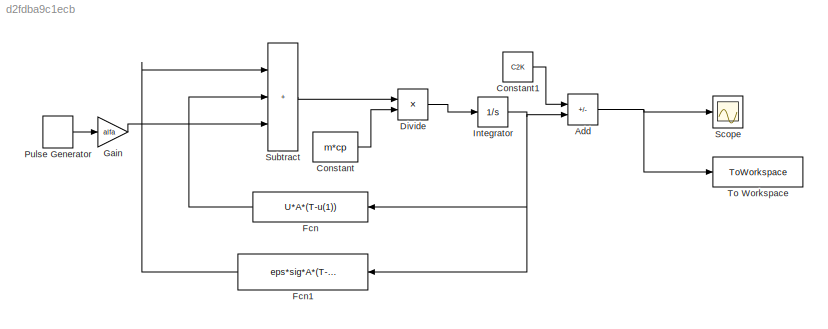
MODEL slx_d2fdba9c1ecb
KIND model
CONFIG AbsTol = auto
CONFIG EnableMultiTasking = off
CONFIG FixedStep = 1
CONFIG MaxStep = auto
CONFIG MinStep = auto
CONFIG RelTol = 1e-3
CONFIG SampleTimeConstraint = Unconstrained
CONFIG SolverName = FixedStepAuto
CONFIG StartTime = 0.0
CONFIG StopTime = 1200
BLOCK [Sum] Add
  IconShape = rectangular
  Inputs = -+
BLOCK [Constant] Constant
  Value = m*cp
BLOCK [Constant] Constant1
  Value = C2K
BLOCK [Product] Divide
  Inputs = */
BLOCK [Fcn] Fcn
  Expr = U*A*(T-u(1))
  NameLocation = top
BLOCK [Fcn] Fcn1
  Expr = eps*sig*A*(T-u(1))
  NameLocation = top
BLOCK [Gain] Gain
  Gain = alfa
BLOCK [Integrator] Integrator
  InitialCondition = t0
BLOCK [DiscretePulseGenerator] Pulse Generator
  Period = 1200
  PulseType = Time based
  PulseWidth = 50
BLOCK [Scope] Scope
  Floating = off
  NumInputPorts = 1
  ScopeSpecificationString = Simulink.scopes.TimeScopeBlockCfg('CurrentConfiguration', extmgr.ConfigurationSet(extmgr.Configuration('Core','General UI',true),extmgr.Configuration('Core','Source UI',true),extmgr.Configuration('Sources','WiredSimulink',true),extmgr.Configuration('Visuals','Time Domain',true,'SerializedDisplays',{struct('MinYLimReal','17.93398','MaxYLimReal','68.5942','YLabelReal','','MinYLimMag','17.93398','Max...<+1357ch>
BLOCK [Sum] Subtract
  IconShape = rectangular
  Inputs = +++
BLOCK [ToWorkspace] To Workspace
  FixptAsFi = on
  MaxDataPoints = inf
  SampleTime = -1
  SaveFormat = Structure With Time
  VariableName = simout
NET Add:1 -> Scope:1, To Workspace:1
LINE Constant1:1 -> Add:1
LINE Constant:1 -> Divide:2
LINE Divide:1 -> Integrator:1
LINE Fcn1:1 -> Subtract:1
LINE Fcn:1 -> Subtract:2
LINE Gain:1 -> Subtract:3
NET Integrator:1 -> Add:2, Fcn1:1, Fcn:1
LINE Pulse Generator:1 -> Gain:1
LINE Subtract:1 -> Divide:1
note: NET lines group one-source signal fan-out (src -> all destinations, sorted); 1:1 wires keep LINE
